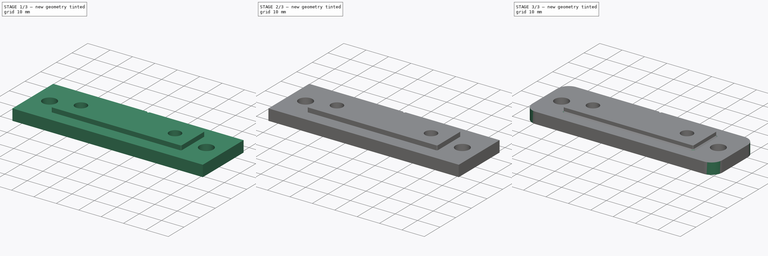
[diagram: build sequence overview — one tinted view per stage of 3, left to right]
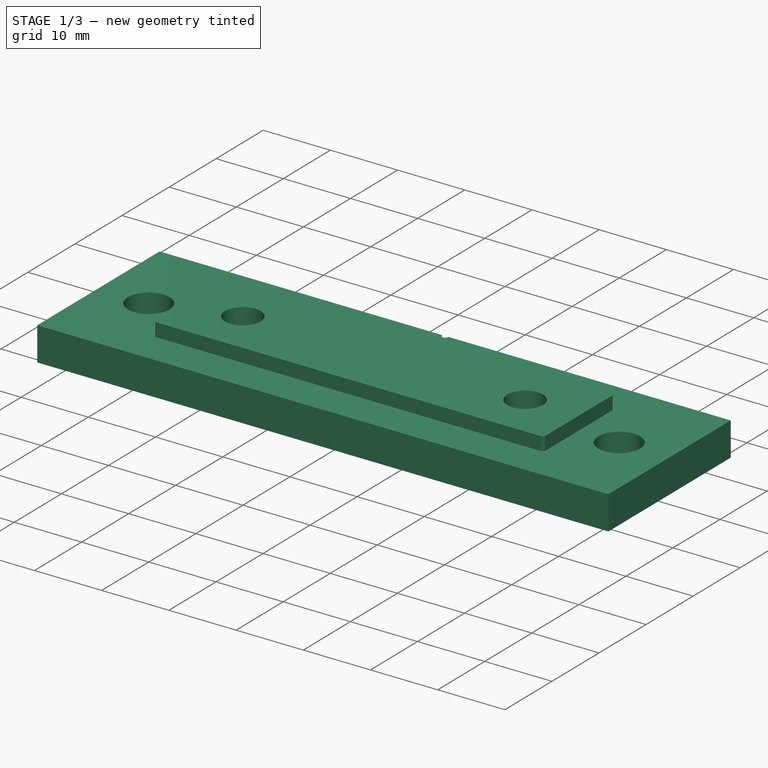
[diagram: stage 1 of 3 — iso view after this stage's code; geometry added in this stage tinted green]
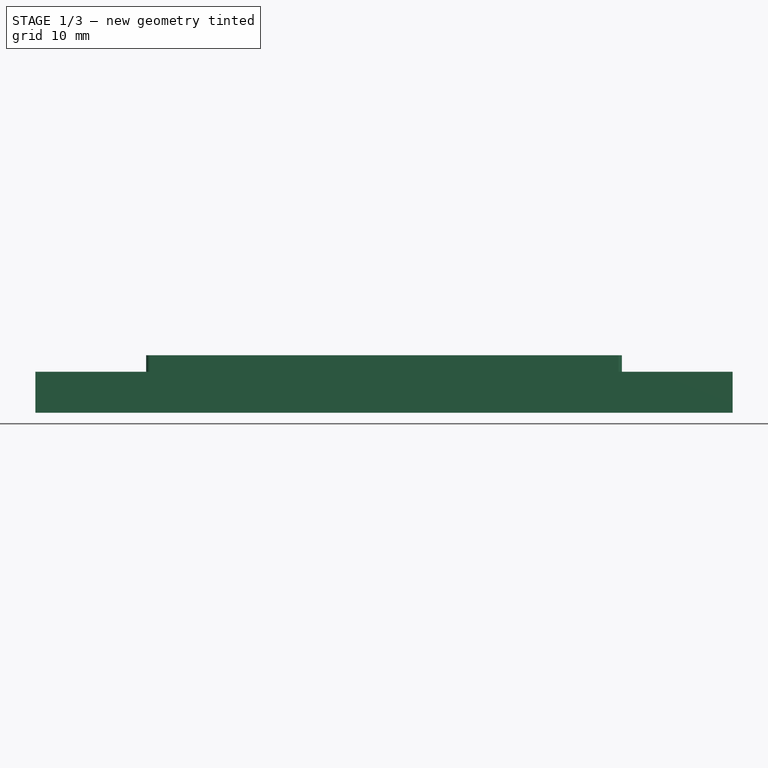
[diagram: stage 1 of 3 — front view after this stage's code; geometry added in this stage tinted green]
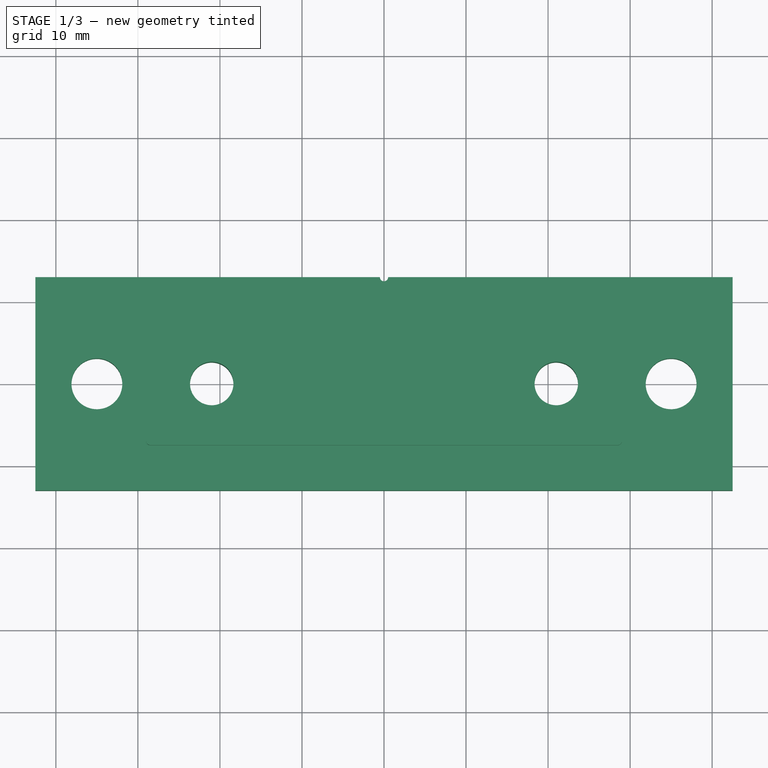
[diagram: stage 1 of 3 — top view after this stage's code; geometry added in this stage tinted green]
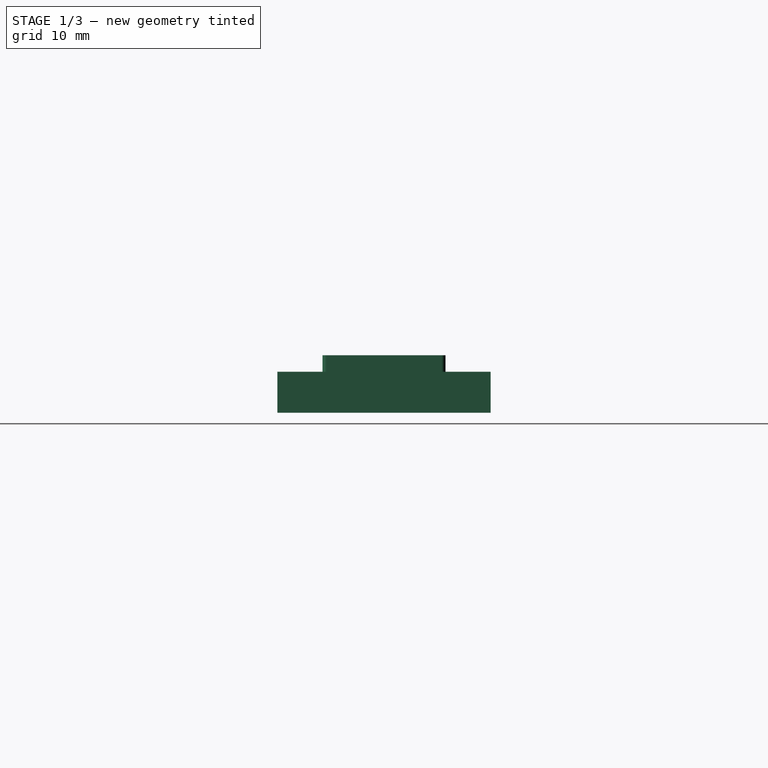
[diagram: stage 1 of 3 — right view after this stage's code; geometry added in this stage tinted green]
FCSTD DOCUMENT  (FreeCAD 0.19R20209 (Git))
Label: Z-KP08_Holder_1010
License: Creative Commons Attribution
LicenseURL: http://creativecommons.org/licenses/by/4.0/
objects: Sketcher::SketchObject×4, PartDesign::Line×2, PartDesign::Groove×2, PartDesign::Pad×1, PartDesign::Pocket×1, PartDesign::Fillet×1, PartDesign::Chamfer×1, PartDesign::Body×1
note: 19 computed .brp shape members not serialized (recipe doc carries the construction recipe); baked Part::Feature solids carry a one-line shape summary decoded from their .brp

FEATURE [Sketcher::SketchObject] Sketch
  MapMode = 5
  Support = -> [XY_Plane]
  sketch-geometry (10):
    g0: LineSegment StartX=-42.5 StartY=13 StartZ=0 EndX=-0.5 EndY=13 EndZ=0
    g1: LineSegment StartX=42.5 StartY=13 StartZ=0 EndX=42.5 EndY=-13 EndZ=0
    g2: LineSegment StartX=42.5 StartY=-13 StartZ=0 EndX=-42.5 EndY=-13 EndZ=0
    g3: LineSegment StartX=-42.5 StartY=-13 StartZ=0 EndX=-42.5 EndY=13 EndZ=0
    g4: Circle CenterX=-21 CenterY=0 CenterZ=0 NormalX=0 NormalY=0 NormalZ=1 AngleXU=0 Radius=2.65
    g5: Circle CenterX=-35 CenterY=0 CenterZ=0 NormalX=0 NormalY=0 NormalZ=1 AngleXU=0 Radius=3.1
    g6: Circle CenterX=35 CenterY=0 CenterZ=0 NormalX=0 NormalY=0 NormalZ=1 AngleXU=0 Radius=3.1
    g7: Circle CenterX=21 CenterY=0 CenterZ=0 NormalX=0 NormalY=0 NormalZ=1 AngleXU=0 Radius=2.65
    g8: ArcOfCircle CenterX=0 CenterY=13 CenterZ=0 NormalX=0 NormalY=0 NormalZ=1 AngleXU=0 Radius=0.5 StartAngle=3.14159 EndAngle=6.28319
    g9: LineSegment StartX=0.5 StartY=13 StartZ=0 EndX=42.5 EndY=13 EndZ=0
  constraints (27):
    c: Coincident(g9,g1)
    c: Coincident(g1,g2)
    c: Coincident(g2,g3)
    c: Coincident(g3,g0)
    c: Horizontal(g0)
    c: Horizontal(g2)
    c: Vertical(g1)
    c: Vertical(g3)
    c: Symmetric(g0,g1,g-1)
    c: DistanceX(g0,g9) = 85
    c: DistanceY(g3,g3) = 26
    c: Equal(g7,g4)
    c: Equal(g5,g6)
    c: Horizontal(g5,g4)
    c: Horizontal(g4,g7)
    c: Symmetric(g4,g7,g-1)
    c: DistanceX(g4,g7) = 42
    c: Symmetric(g5,g6,g-1)
    c: DistanceX(g5,g6) = 70
    c: Diameter(g4) = 5.3
    c: Diameter(g5) = 6.2
    c: PointOnObject(g8,g-2)
    c: Horizontal(g8,g9)
    c: Tangent(g0,g9)
    c: Coincident(g8,g0)
    c: Coincident(g8,g9)
    c: Diameter(g8) = 1
FEATURE [PartDesign::Pad] Pad
  Length = 2
  Length2 = 5
  Profile = -> Sketch
  Refine = true
  Type = 4
FEATURE [Sketcher::SketchObject] Sketch001
  ExternalGeometry = -> [Pad]
  MapMode = 5
  Support = -> [XY_Plane]
  sketch-geometry (12):
    g0: LineSegment StartX=-28.5 StartY=7.5 StartZ=0 EndX=28.5 EndY=7.5 EndZ=0
    g1: LineSegment StartX=29 StartY=7 StartZ=0 EndX=29 EndY=-7 EndZ=0
    g2: LineSegment StartX=28.5 StartY=-7.5 StartZ=0 EndX=-28.5 EndY=-7.5 EndZ=0
    g3: LineSegment StartX=-29 StartY=-7 StartZ=0 EndX=-29 EndY=7 EndZ=0
    g4: LineSegment StartX=-42.5 StartY=13 StartZ=0 EndX=42.5 EndY=13 EndZ=0
    g5: LineSegment StartX=42.5 StartY=13 StartZ=0 EndX=42.5 EndY=-13 EndZ=0
    g6: LineSegment StartX=42.5 StartY=-13 StartZ=0 EndX=-42.5 EndY=-13 EndZ=0
    g7: LineSegment StartX=-42.5 StartY=-13 StartZ=0 EndX=-42.5 EndY=13 EndZ=0
    g8: ArcOfCircle CenterX=-28.5 CenterY=7 CenterZ=0 NormalX=0 NormalY=0 NormalZ=1 AngleXU=0 Radius=0.5 StartAngle=1.5708 EndAngle=3.14159
    g9: ArcOfCircle CenterX=-28.5 CenterY=-7 CenterZ=0 NormalX=0 NormalY=0 NormalZ=1 AngleXU=0 Radius=0.5 StartAngle=3.14159 EndAngle=4.71239
    g10: ArcOfCircle CenterX=28.5 CenterY=-7 CenterZ=0 NormalX=0 NormalY=0 NormalZ=1 AngleXU=0 Radius=0.5 StartAngle=4.71239 EndAngle=6.28319
    g11: ArcOfCircle CenterX=28.5 CenterY=7 CenterZ=0 NormalX=0 NormalY=0 NormalZ=1 AngleXU=0 Radius=0.5 StartAngle=-9e-16 EndAngle=1.5708
  constraints (29):
    c: Horizontal(g0)
    c: Horizontal(g2)
    c: Vertical(g1)
    c: Vertical(g3)
    c: Coincident(g4,g5)
    c: Coincident(g5,g6)
    c: Coincident(g6,g7)
    c: Horizontal(g4)
    c: Horizontal(g6)
    c: Vertical(g5)
    c: Vertical(g7)
    c: Symmetric(g4,g5,g-1)
    c: Coincident(g4,g7)
    c: Coincident(g4,g-3)
    c: Tangent(g0,g8) = 1.5708
    c: Tangent(g3,g8) = 1.5708
    c: Tangent(g3,g9) = 1.5708
    c: Tangent(g2,g9) = 1.5708
    c: Tangent(g2,g10) = 1.5708
    c: Tangent(g1,g10) = 1.5708
    c: Tangent(g1,g11) = 1.5708
    c: Tangent(g0,g11) = 1.5708
    c: Equal(g11,g10)
    c: Equal(g10,g9)
    c: Equal(g9,g8)
    c: Diameter(g8) = 1
    c: DistanceX(g3,g1) = 58
    c: DistanceY(g2,g0) = 15
    c: Symmetric(g8,g10,g-1)
FEATURE [PartDesign::Pocket] Pocket
  BaseFeature = -> Pad
  Length = 5
  Length2 = 100
  Profile = -> Sketch001
  Refine = true
  Reversed = true
  Type = 0
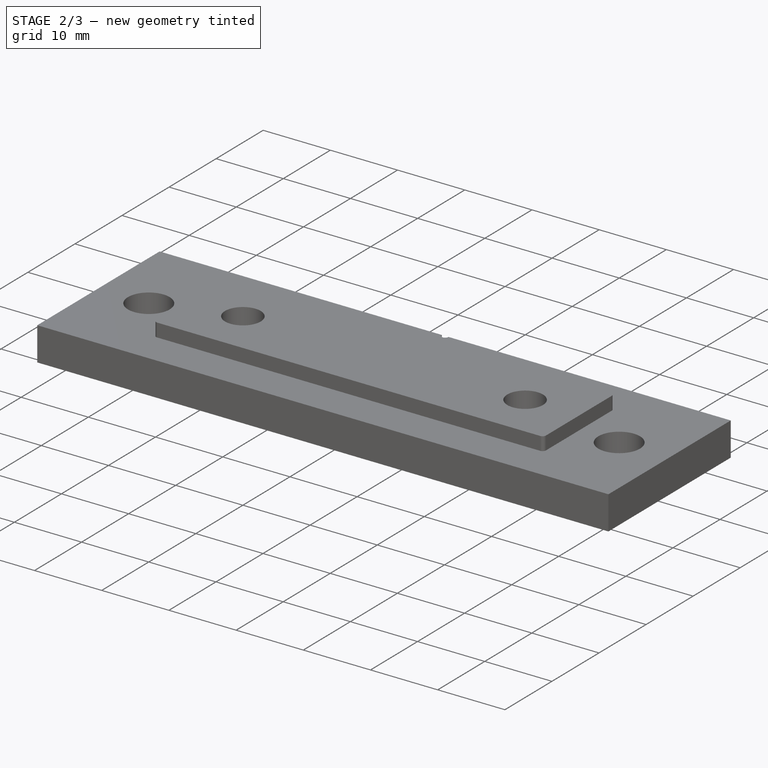
[diagram: stage 2 of 3 — iso view after this stage's code; geometry added in this stage tinted green]
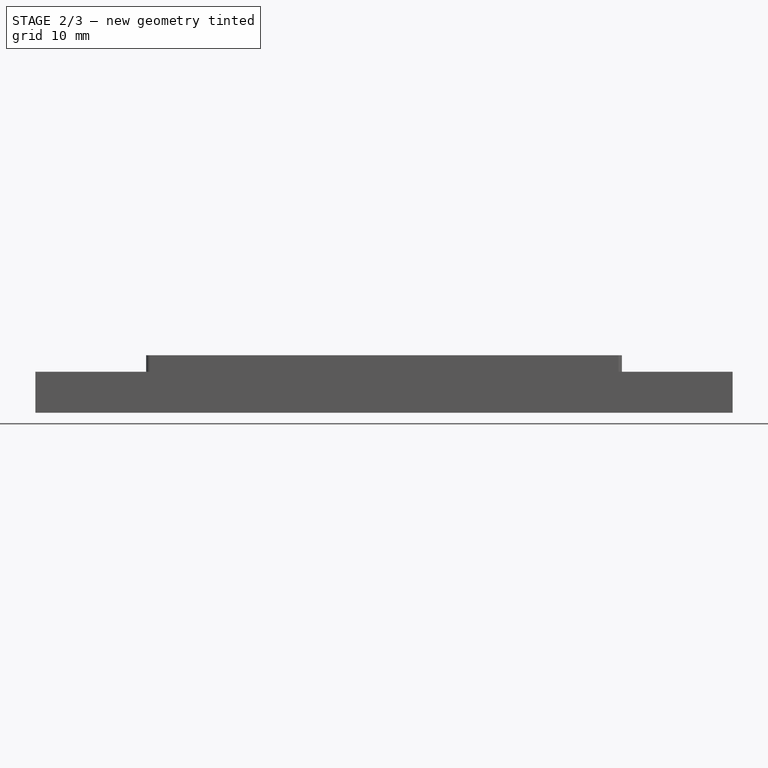
[diagram: stage 2 of 3 — front view after this stage's code; geometry added in this stage tinted green]
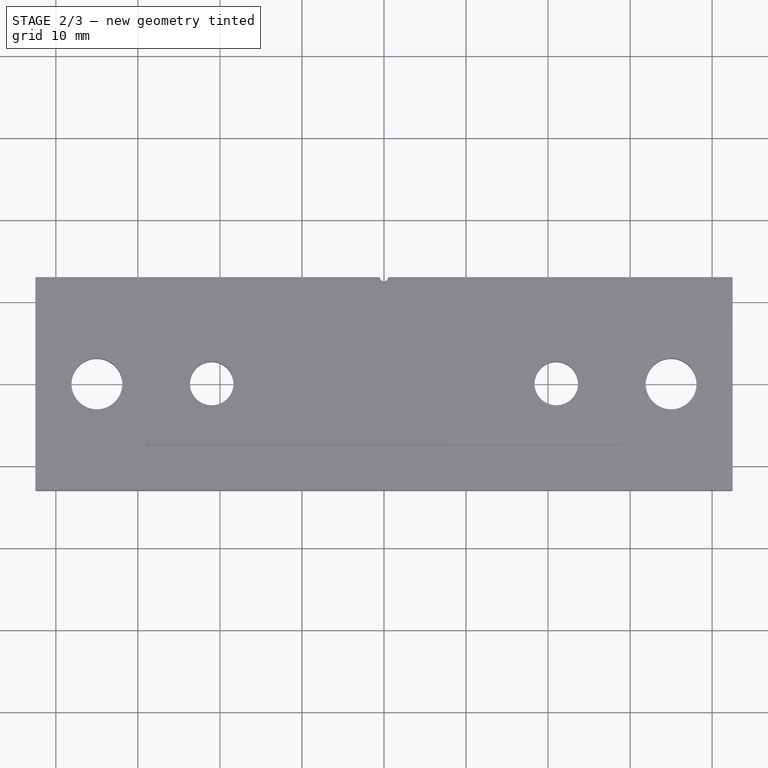
[diagram: stage 2 of 3 — top view after this stage's code; geometry added in this stage tinted green]
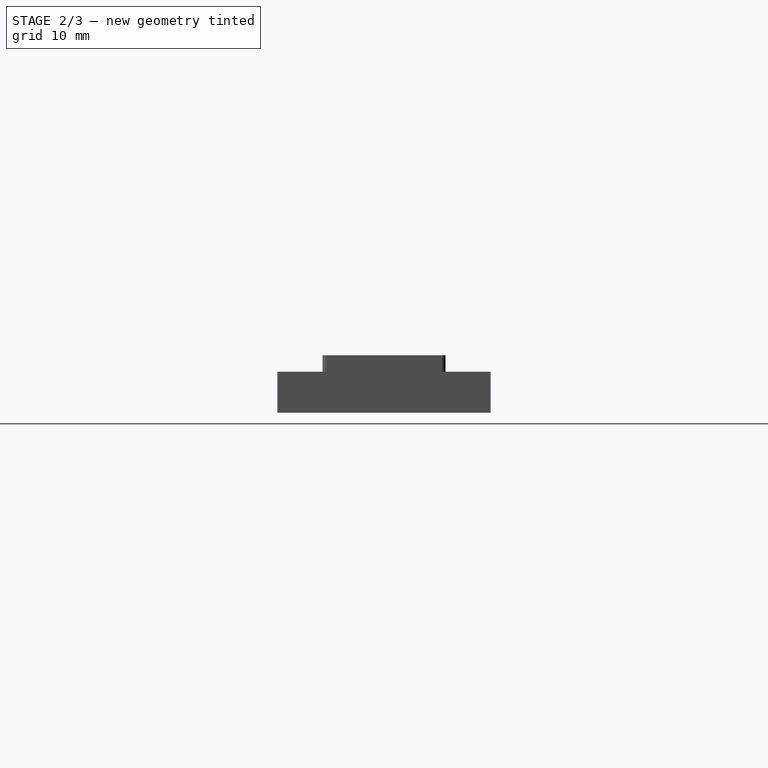
[diagram: stage 2 of 3 — right view after this stage's code; geometry added in this stage tinted green]
FEATURE [PartDesign::Line] DatumLine
  AttacherType = Attacher::AttachEngineLine
  AttachmentOffset = pos=(-21,0,0) rot=(0,0,1;0rad)
  MapMode = 29
  Placement = pos=(-21,0,-7e-15) rot=(0,0,1;0rad)
  Support = -> [Z_Axis]
FEATURE [PartDesign::Line] DatumLine001
  AttacherType = Attacher::AttachEngineLine
  AttachmentOffset = pos=(21,0,0) rot=(0,0,1;0rad)
  MapMode = 29
  Placement = pos=(21,0,7e-15) rot=(0,0,1;0rad)
  Support = -> [Z_Axis]
FEATURE [Sketcher::SketchObject] Sketch002
  ExternalGeometry = -> [Pocket]
  MapMode = 5
  Placement = pos=(0,0,0) rot=(1,0,0;1.5708rad)
  Support = -> [XZ_Plane]
  sketch-geometry (4):
    g0: LineSegment StartX=-21 StartY=0.4 StartZ=0 EndX=-16 EndY=-4.6 EndZ=0
    g1: LineSegment StartX=-16 StartY=-4.6 StartZ=0 EndX=-16 EndY=-5 EndZ=0
    g2: LineSegment StartX=-16 StartY=-5 StartZ=0 EndX=-21 EndY=-5 EndZ=0
    g3: LineSegment StartX=-21 StartY=-5 StartZ=0 EndX=-21 EndY=0.4 EndZ=0
  constraints (12):
    c: Coincident(g0,g1)
    c: Vertical(g1)
    c: Coincident(g1,g2)
    c: Horizontal(g2)
    c: Coincident(g2,g3)
    c: Vertical(g3)
    c: Coincident(g0,g3)
    c: Angle(g3,g0) = 0.785398
    c: DistanceY(g1,g1) = 0.4
    c: DistanceX(g2,g2) = 5
    c: DistanceX(g0,g-1) = 21
    c: PointOnObject(g2,g-3)
FEATURE [PartDesign::Groove] Groove
  Angle = 360
  Axis = (-3e-16,3e-16,1)
  Base = (-21,0,-7e-15)
  BaseFeature = -> Pocket
  Profile = -> Sketch002
  ReferenceAxis = -> DatumLine
  Refine = true
  Reversed = true
FEATURE [Sketcher::SketchObject] Sketch003
  ExternalGeometry = -> [Groove]
  MapMode = 5
  Placement = pos=(0,0,0) rot=(1,0,0;1.5708rad)
  Support = -> [XZ_Plane]
  sketch-geometry (4):
    g0: LineSegment StartX=21 StartY=0.4 StartZ=0 EndX=26 EndY=-4.6 EndZ=0
    g1: LineSegment StartX=26 StartY=-4.6 StartZ=0 EndX=26 EndY=-5 EndZ=0
    g2: LineSegment StartX=26 StartY=-5 StartZ=0 EndX=21 EndY=-5 EndZ=0
    g3: LineSegment StartX=21 StartY=-5 StartZ=0 EndX=21 EndY=0.4 EndZ=0
  constraints (12):
    c: Coincident(g0,g1)
    c: Vertical(g1)
    c: Coincident(g1,g2)
    c: Horizontal(g2)
    c: Coincident(g2,g3)
    c: Vertical(g3)
    c: Coincident(g0,g3)
    c: Angle(g3,g0) = 0.785398
    c: DistanceY(g1,g1) = 0.4
    c: DistanceX(g2,g2) = 5
    c: DistanceX(g-1,g0) = 21
    c: PointOnObject(g2,g-3)
FEATURE [PartDesign::Groove] Groove001
  Angle = 360
  Axis = (-3e-16,3e-16,1)
  Base = (21,0,7e-15)
  BaseFeature = -> Groove
  Profile = -> Sketch003
  ReferenceAxis = -> DatumLine001
  Refine = true
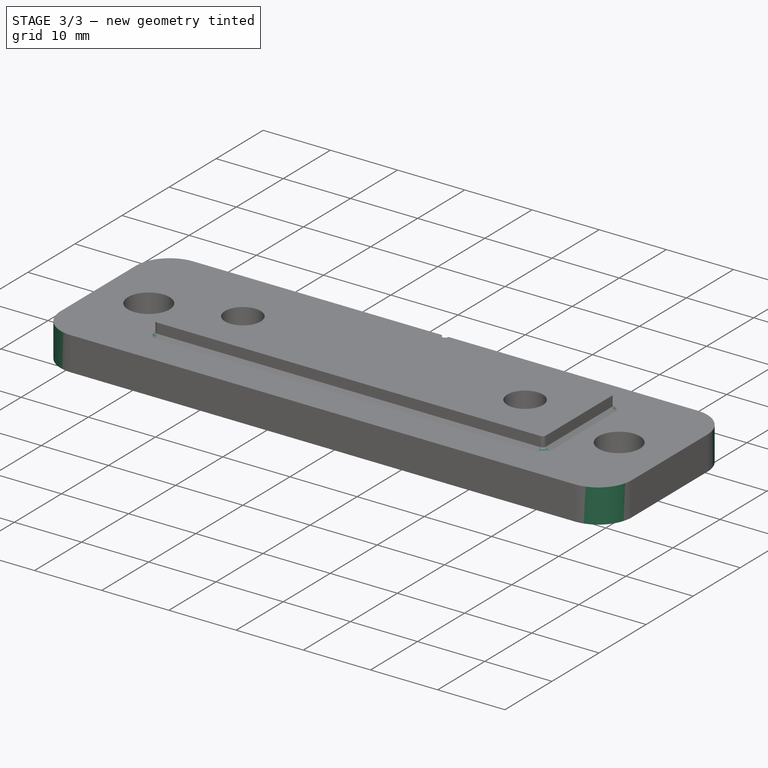
[diagram: stage 3 of 3 — iso view after this stage's code; geometry added in this stage tinted green]
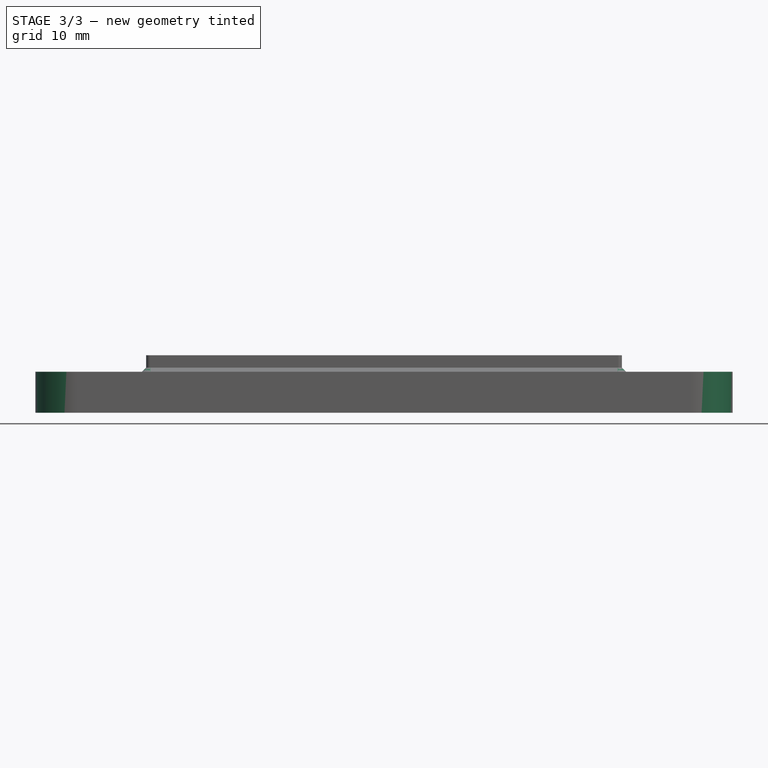
[diagram: stage 3 of 3 — front view after this stage's code; geometry added in this stage tinted green]
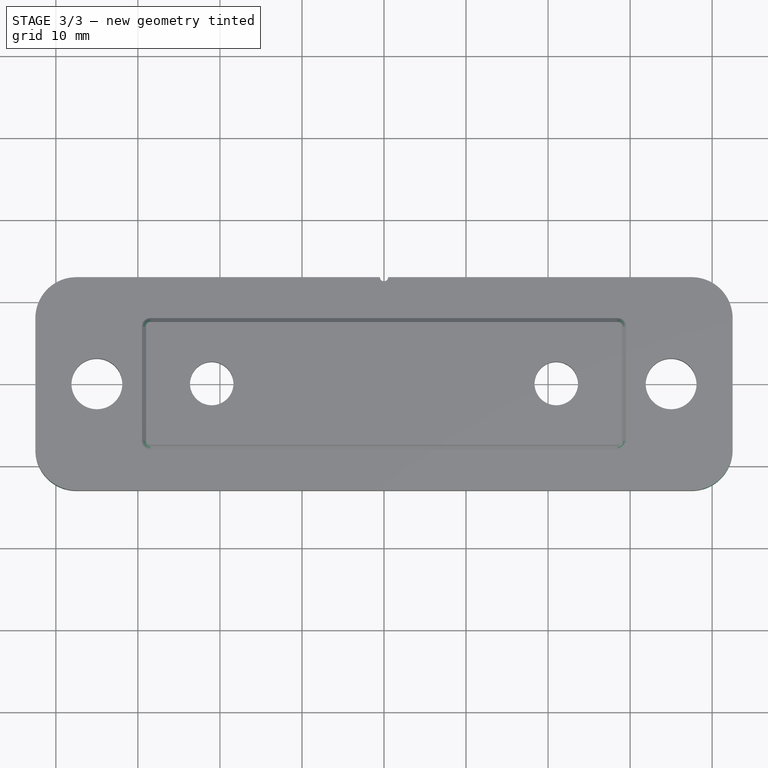
[diagram: stage 3 of 3 — top view after this stage's code; geometry added in this stage tinted green]
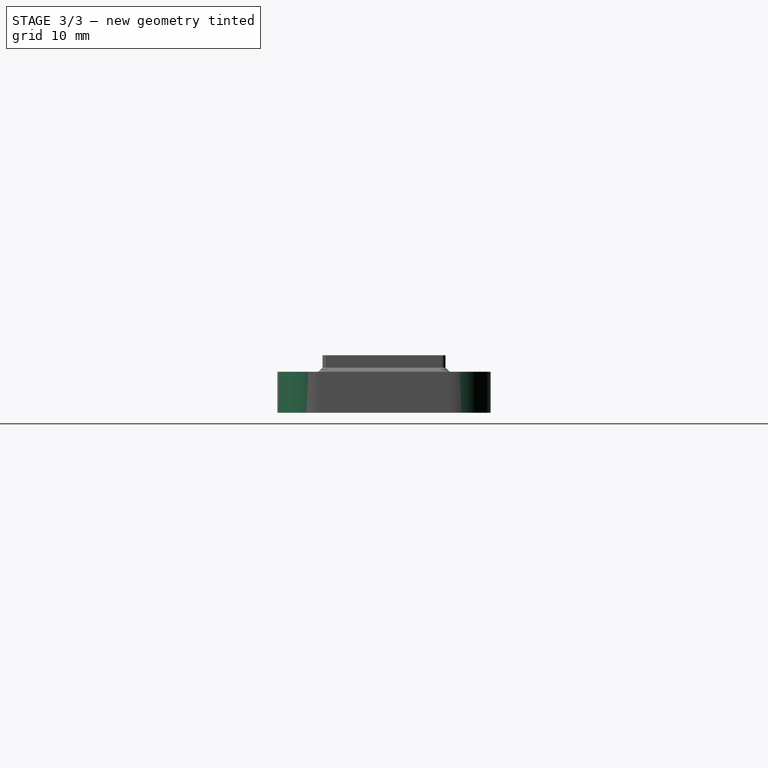
[diagram: stage 3 of 3 — right view after this stage's code; geometry added in this stage tinted green]
FEATURE [PartDesign::Fillet] Fillet
  Base = -> Groove001 [Edge32,Edge31,Edge4,Edge30]
  BaseFeature = -> Groove001
  Radius = 5
  Refine = true
  SupportTransform = true
FEATURE [PartDesign::Chamfer] Chamfer
  Base = -> Fillet [Edge35]
  BaseFeature = -> Fillet
  Refine = true
  Size = 0.5
  SupportTransform = true
FEATURE [PartDesign::Body] Body
  Group = -> [Sketch,Pad,Sketch001,Pocket,DatumLine,DatumLine001,Sketch002,Groove,Sketch003,Groove001,Fillet,Chamfer]
  Origin = -> Origin
  Tip = -> Chamfer
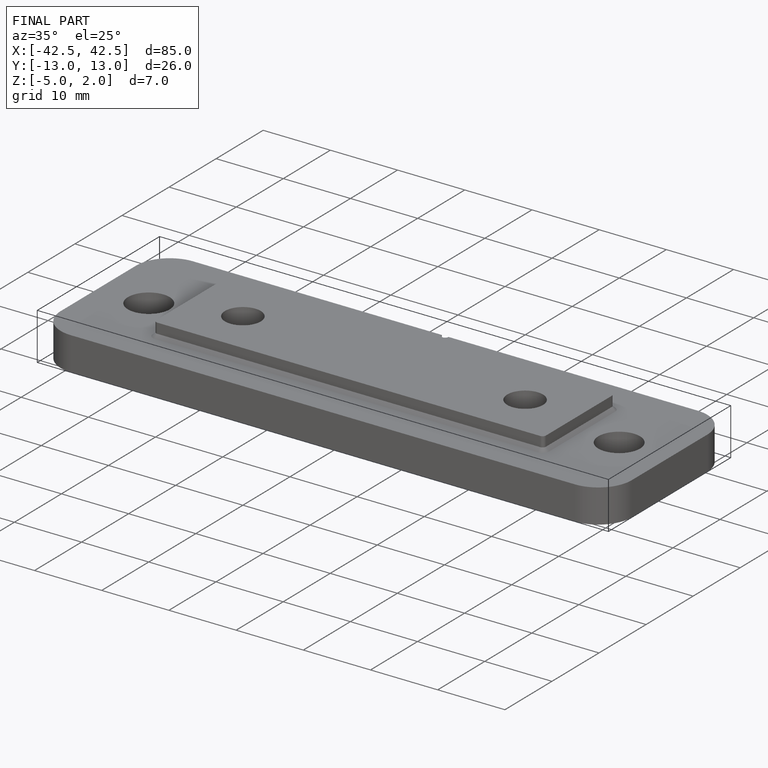
[diagram: finished part — iso view with bounding-box wireframe]
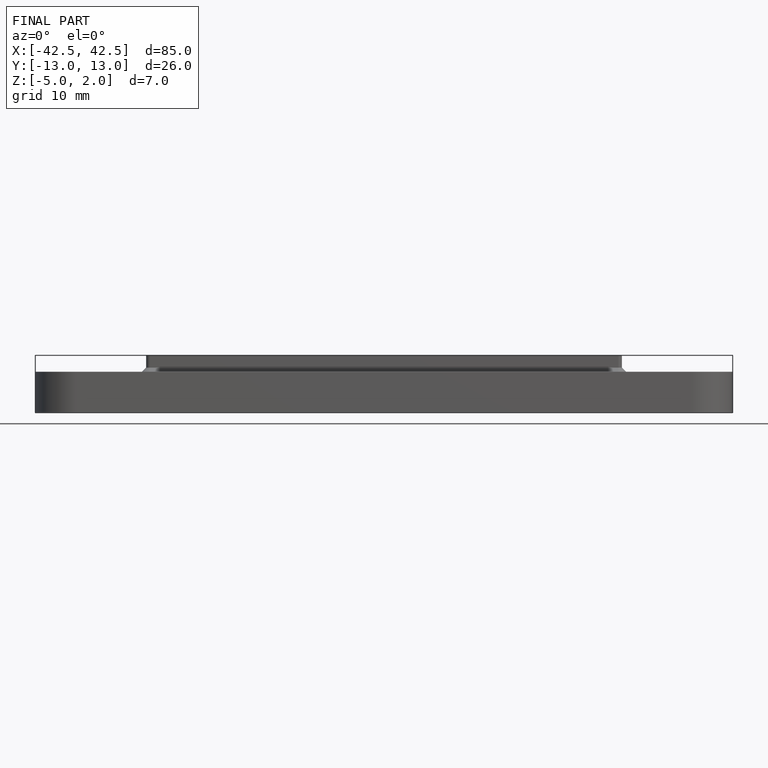
[diagram: finished part — front view with bounding-box wireframe]
